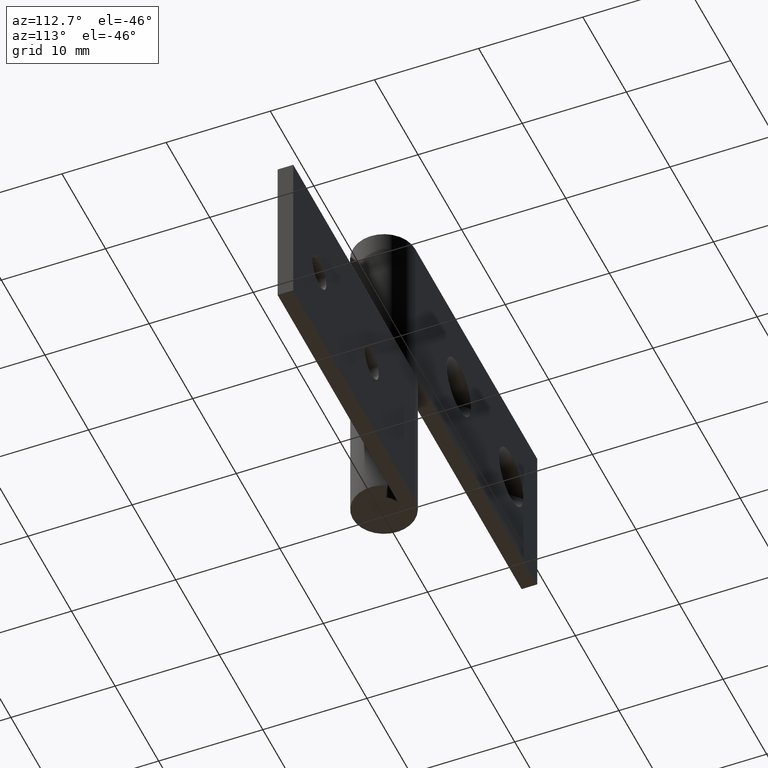
[diagram: clean part render]
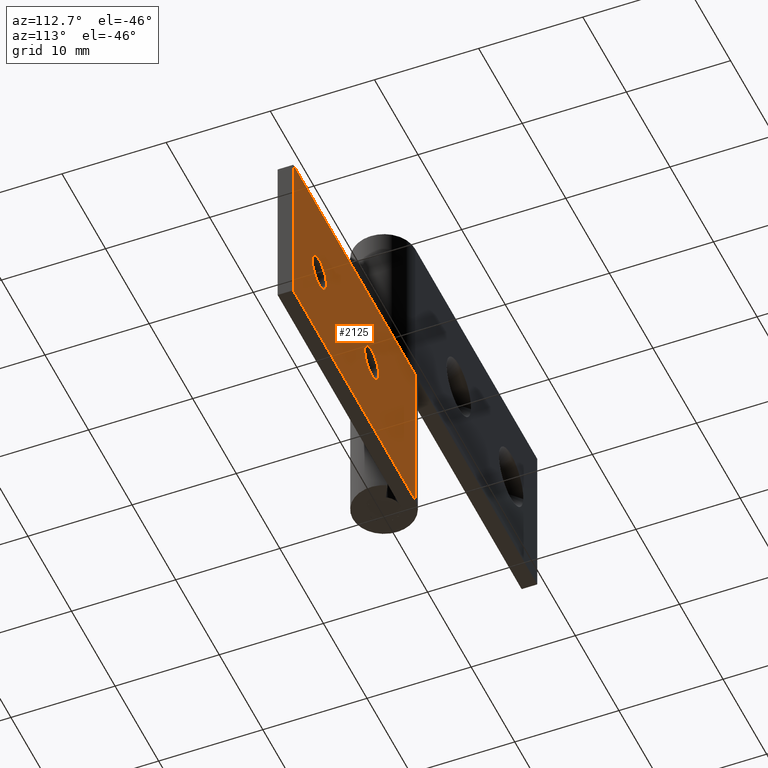
[diagram: same view with one face highlighted and labeled with its STEP entity id]
A machine part, auxiliary view. The second image highlights one B-rep face of the part: STEP entity #2125.
In plain terms, the highlighted face is a freeform B-spline surface patch.
Its self-contained STEP definition (entity closure, byte-faithful):
#1485=CARTESIAN_POINT('',(23.588815242162749,3.0,8.188854775611610));
#1486=VERTEX_POINT('',#1485);
#1492=CARTESIAN_POINT('',(22.0,3.0,6.400000000000000));
#1493=VERTEX_POINT('',#1492);
#1494=CARTESIAN_POINT('',(23.588815242162749,3.000000000000000,8.188854775611610));
#1495=CARTESIAN_POINT('',(23.599999999999998,3.0,8.094758591605553));
#1496=CARTESIAN_POINT('',(23.600000000000001,3.0,8.0));
#1497=CARTESIAN_POINT('',(23.599999999999998,3.0,6.400000000000000));
#1498=CARTESIAN_POINT('',(22.0,3.0,6.400000000000000));
#1506=(BOUNDED_CURVE()B_SPLINE_CURVE(2,(#1494,#1495,#1496,#1497,#1498),.UNSPECIFIED.,.F.,.U.)B_SPLINE_CURVE_WITH_KNOTS((3,2,3),(0.229562473481436,0.250000000000000,0.500000000000000),.UNSPECIFIED.)CURVE()GEOMETRIC_REPRESENTATION_ITEM()RATIONAL_B_SPLINE_CURVE((0.956026754120836,0.976055948293570,1.0,0.707106781186548,1.0))REPRESENTATION_ITEM(''));
#1507=EDGE_CURVE('',#1486,#1493,#1506,.T.);
#1509=CARTESIAN_POINT('',(20.402984322532060,3.0,7.902322336629080));
#1510=VERTEX_POINT('',#1509);
#1511=CARTESIAN_POINT('',(22.0,3.0,6.400000000000000));
#1512=CARTESIAN_POINT('',(20.494870293168336,3.000000000000000,6.400000000000000));
#1513=CARTESIAN_POINT('',(20.402984322532060,2.999999999999999,7.902322336629080));
#1521=(BOUNDED_CURVE()B_SPLINE_CURVE(2,(#1511,#1512,#1513),.UNSPECIFIED.,.F.,.U.)B_SPLINE_CURVE_WITH_KNOTS((3,3),(0.500000000000000,0.739332962217087),.UNSPECIFIED.)CURVE()GEOMETRIC_REPRESENTATION_ITEM()RATIONAL_B_SPLINE_CURVE((1.0,0.719603993312316,0.976072041619876))REPRESENTATION_ITEM(''));
#1522=EDGE_CURVE('',#1493,#1510,#1521,.T.);
#1596=CARTESIAN_POINT('',(22.0,3.0,9.600000000000001));
#1597=VERTEX_POINT('',#1596);
#1598=CARTESIAN_POINT('',(20.402984322532060,2.999999999999999,7.902322336629080));
#1599=CARTESIAN_POINT('',(20.400000000000002,3.000000000000000,7.951115578606786));
#1600=CARTESIAN_POINT('',(20.399999999999999,3.0,8.0));
#1601=CARTESIAN_POINT('',(20.399999999999999,3.0,9.600000000000001));
#1602=CARTESIAN_POINT('',(22.0,3.0,9.600000000000001));
#1610=(BOUNDED_CURVE()B_SPLINE_CURVE(2,(#1598,#1599,#1600,#1601,#1602),.UNSPECIFIED.,.F.,.U.)B_SPLINE_CURVE_WITH_KNOTS((3,2,3),(0.739332962217086,0.750000000000000,1.0),.UNSPECIFIED.)CURVE()GEOMETRIC_REPRESENTATION_ITEM()RATIONAL_B_SPLINE_CURVE((0.976072041619875,0.987502787874231,1.0,0.707106781186548,1.0))REPRESENTATION_ITEM(''));
#1611=EDGE_CURVE('',#1510,#1597,#1610,.T.);
#1613=CARTESIAN_POINT('',(22.0,3.0,9.600000000000001));
#1614=CARTESIAN_POINT('',(23.421079241232523,3.000000000000000,9.600000000000003));
#1615=CARTESIAN_POINT('',(23.588815242162752,3.000000000000000,8.188854775611610));
#1623=(BOUNDED_CURVE()B_SPLINE_CURVE(2,(#1613,#1614,#1615),.UNSPECIFIED.,.F.,.U.)B_SPLINE_CURVE_WITH_KNOTS((3,3),(0.0,0.229562473481436),.UNSPECIFIED.)CURVE()GEOMETRIC_REPRESENTATION_ITEM()RATIONAL_B_SPLINE_CURVE((1.0,0.731050832892977,0.956026754120836))REPRESENTATION_ITEM(''));
#1624=EDGE_CURVE('',#1597,#1486,#1623,.T.);
#1671=CARTESIAN_POINT('',(11.588815242162751,3.0,8.188854775611610));
#1672=VERTEX_POINT('',#1671);
#1678=CARTESIAN_POINT('',(10.0,3.0,6.400000000000000));
#1679=VERTEX_POINT('',#1678);
#1680=CARTESIAN_POINT('',(11.588815242162754,3.000000000000000,8.188854775611610));
#1681=CARTESIAN_POINT('',(11.599999999999998,3.0,8.094758591605553));
#1682=CARTESIAN_POINT('',(11.600000000000000,3.0,8.0));
#1683=CARTESIAN_POINT('',(11.600000000000001,3.0,6.400000000000000));
#1684=CARTESIAN_POINT('',(10.0,3.0,6.400000000000000));
#1692=(BOUNDED_CURVE()B_SPLINE_CURVE(2,(#1680,#1681,#1682,#1683,#1684),.UNSPECIFIED.,.F.,.U.)B_SPLINE_CURVE_WITH_KNOTS((3,2,3),(0.229562473481436,0.250000000000000,0.500000000000000),.UNSPECIFIED.)CURVE()GEOMETRIC_REPRESENTATION_ITEM()RATIONAL_B_SPLINE_CURVE((0.956026754120836,0.976055948293570,1.0,0.707106781186548,1.0))REPRESENTATION_ITEM(''));
#1693=EDGE_CURVE('',#1672,#1679,#1692,.T.);
#1695=CARTESIAN_POINT('',(8.402984322532056,3.0,7.902322336629080));
#1696=VERTEX_POINT('',#1695);
#1697=CARTESIAN_POINT('',(10.0,3.0,6.400000000000000));
#1698=CARTESIAN_POINT('',(8.494870293168335,3.000000000000000,6.400000000000000));
#1699=CARTESIAN_POINT('',(8.402984322532056,2.999999999999999,7.902322336629080));
#1707=(BOUNDED_CURVE()B_SPLINE_CURVE(2,(#1697,#1698,#1699),.UNSPECIFIED.,.F.,.U.)B_SPLINE_CURVE_WITH_KNOTS((3,3),(0.500000000000000,0.739332962217087),.UNSPECIFIED.)CURVE()GEOMETRIC_REPRESENTATION_ITEM()RATIONAL_B_SPLINE_CURVE((1.0,0.719603993312316,0.976072041619876))REPRESENTATION_ITEM(''));
#1708=EDGE_CURVE('',#1679,#1696,#1707,.T.);
#1782=CARTESIAN_POINT('',(10.0,3.0,9.600000000000001));
#1783=VERTEX_POINT('',#1782);
#1784=CARTESIAN_POINT('',(8.402984322532056,3.0,7.902322336629080));
#1785=CARTESIAN_POINT('',(8.400000000000000,3.000000000000000,7.951115578606786));
#1786=CARTESIAN_POINT('',(8.400000000000000,3.0,8.0));
#1787=CARTESIAN_POINT('',(8.400000000000000,3.0,9.600000000000001));
#1788=CARTESIAN_POINT('',(10.0,3.0,9.600000000000001));
#1796=(BOUNDED_CURVE()B_SPLINE_CURVE(2,(#1784,#1785,#1786,#1787,#1788),.UNSPECIFIED.,.F.,.U.)B_SPLINE_CURVE_WITH_KNOTS((3,2,3),(0.739332962217086,0.750000000000000,1.0),.UNSPECIFIED.)CURVE()GEOMETRIC_REPRESENTATION_ITEM()RATIONAL_B_SPLINE_CURVE((0.976072041619875,0.987502787874231,1.0,0.707106781186548,1.0))REPRESENTATION_ITEM(''));
#1797=EDGE_CURVE('',#1696,#1783,#1796,.T.);
#1799=CARTESIAN_POINT('',(10.0,3.0,9.600000000000001));
#1800=CARTESIAN_POINT('',(11.421079241232523,3.000000000000000,9.600000000000003));
#1801=CARTESIAN_POINT('',(11.588815242162751,3.000000000000000,8.188854775611610));
#1809=(BOUNDED_CURVE()B_SPLINE_CURVE(2,(#1799,#1800,#1801),.UNSPECIFIED.,.F.,.U.)B_SPLINE_CURVE_WITH_KNOTS((3,3),(0.0,0.229562473481436),.UNSPECIFIED.)CURVE()GEOMETRIC_REPRESENTATION_ITEM()RATIONAL_B_SPLINE_CURVE((1.0,0.731050832892977,0.956026754120836))REPRESENTATION_ITEM(''));
#1810=EDGE_CURVE('',#1783,#1672,#1809,.T.);
#1823=CARTESIAN_POINT('',(0.0,3.0,16.0));
#1824=VERTEX_POINT('',#1823);
#1879=CARTESIAN_POINT('',(28.000008000000001,3.0,16.0));
#1880=VERTEX_POINT('',#1879);
#1886=CARTESIAN_POINT('',(0.0,3.0,16.0));
#1887=CARTESIAN_POINT('',(28.000008000000001,3.0,16.0));
#1888=QUASI_UNIFORM_CURVE('',1,(#1886,#1887),.UNSPECIFIED.,.F.,.U.);
#1889=EDGE_CURVE('',#1824,#1880,#1888,.T.);
#1901=CARTESIAN_POINT('',(0.0,3.0,0.0));
#1902=VERTEX_POINT('',#1901);
#1922=CARTESIAN_POINT('',(28.000008000000001,3.0,0.0));
#1923=VERTEX_POINT('',#1922);
#1924=CARTESIAN_POINT('',(0.0,3.0,0.0));
#1925=CARTESIAN_POINT('',(28.000008000000001,3.0,0.0));
#1926=QUASI_UNIFORM_CURVE('',1,(#1924,#1925),.UNSPECIFIED.,.F.,.U.);
#1927=EDGE_CURVE('',#1902,#1923,#1926,.T.);
#2037=CARTESIAN_POINT('',(28.000008000000001,3.0,0.0));
#2038=CARTESIAN_POINT('',(28.000008000000001,3.0,16.0));
#2039=QUASI_UNIFORM_CURVE('',1,(#2037,#2038),.UNSPECIFIED.,.F.,.U.);
#2040=EDGE_CURVE('',#1923,#1880,#2039,.T.);
#2068=CARTESIAN_POINT('',(0.0,3.0,0.0));
#2069=CARTESIAN_POINT('',(0.0,3.0,16.0));
#2070=QUASI_UNIFORM_CURVE('',1,(#2068,#2069),.UNSPECIFIED.,.F.,.U.);
#2071=EDGE_CURVE('',#1902,#1824,#2070,.T.);
#2102=CARTESIAN_POINT('',(-1.398600245294859,3.0,16.799199968988891));
#2103=CARTESIAN_POINT('',(-1.398600245294859,3.0,-0.799200398142339));
#2104=CARTESIAN_POINT('',(29.398606993596960,3.0,16.799199968988891));
#2105=CARTESIAN_POINT('',(29.398606993596960,3.0,-0.799200398142339));
#2106=B_SPLINE_SURFACE_WITH_KNOTS('',1,1,((#2102,#2104),(#2103,#2105)),.UNSPECIFIED.,.F.,.F.,.U.,(2,2),(2,2),(0.0,17.598400367131230),(0.0,30.797207238891819),.UNSPECIFIED.);
#2107=ORIENTED_EDGE('',*,*,#1889,.T.);
#2108=ORIENTED_EDGE('',*,*,#2040,.F.);
#2109=ORIENTED_EDGE('',*,*,#1927,.F.);
#2110=ORIENTED_EDGE('',*,*,#2071,.T.);
#2111=EDGE_LOOP('',(#2107,#2108,#2109,#2110));
#2112=FACE_OUTER_BOUND('',#2111,.T.);
#2113=ORIENTED_EDGE('',*,*,#1708,.F.);
#2114=ORIENTED_EDGE('',*,*,#1693,.F.);
#2115=ORIENTED_EDGE('',*,*,#1810,.F.);
#2116=ORIENTED_EDGE('',*,*,#1797,.F.);
#2117=EDGE_LOOP('',(#2113,#2114,#2115,#2116));
#2118=FACE_BOUND('',#2117,.T.);
#2119=ORIENTED_EDGE('',*,*,#1522,.F.);
#2120=ORIENTED_EDGE('',*,*,#1507,.F.);
#2121=ORIENTED_EDGE('',*,*,#1624,.F.);
#2122=ORIENTED_EDGE('',*,*,#1611,.F.);
#2123=EDGE_LOOP('',(#2119,#2120,#2121,#2122));
#2124=FACE_BOUND('',#2123,.T.);
#2125=ADVANCED_FACE('',(#2112,#2118,#2124),#2106,.F.);